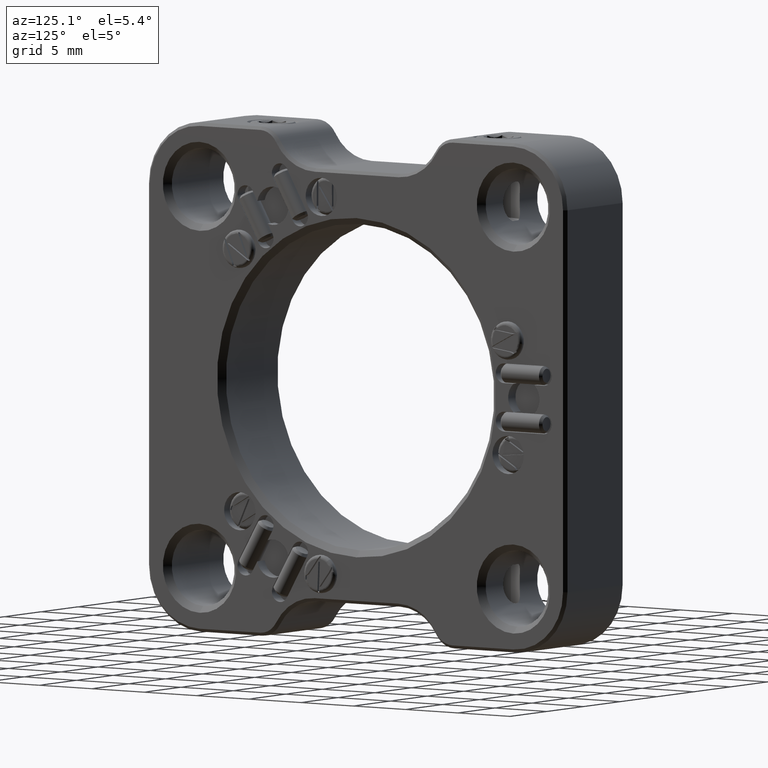
[diagram: clean part render]
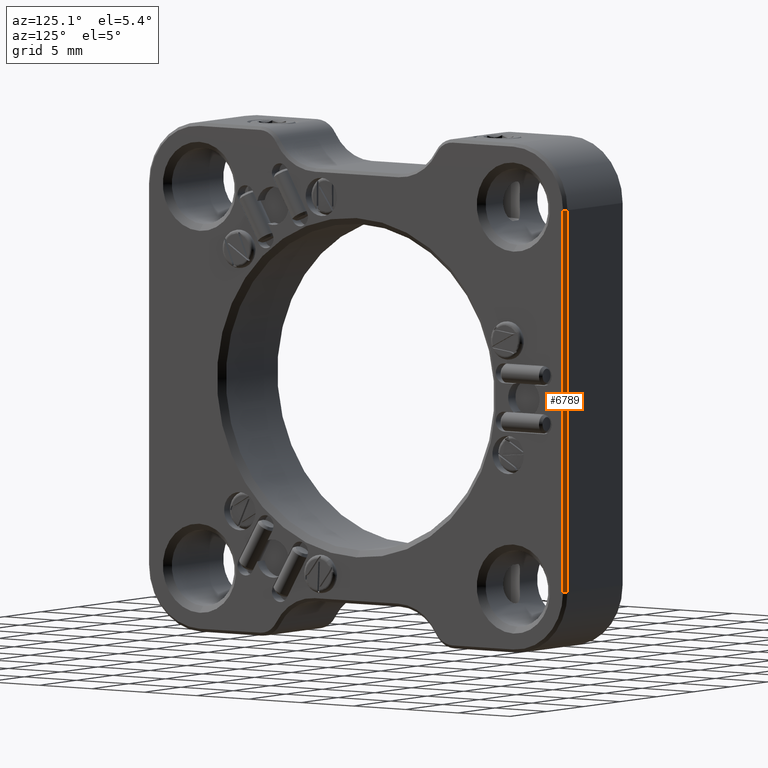
[diagram: same view with one face highlighted and labeled with its STEP entity id]
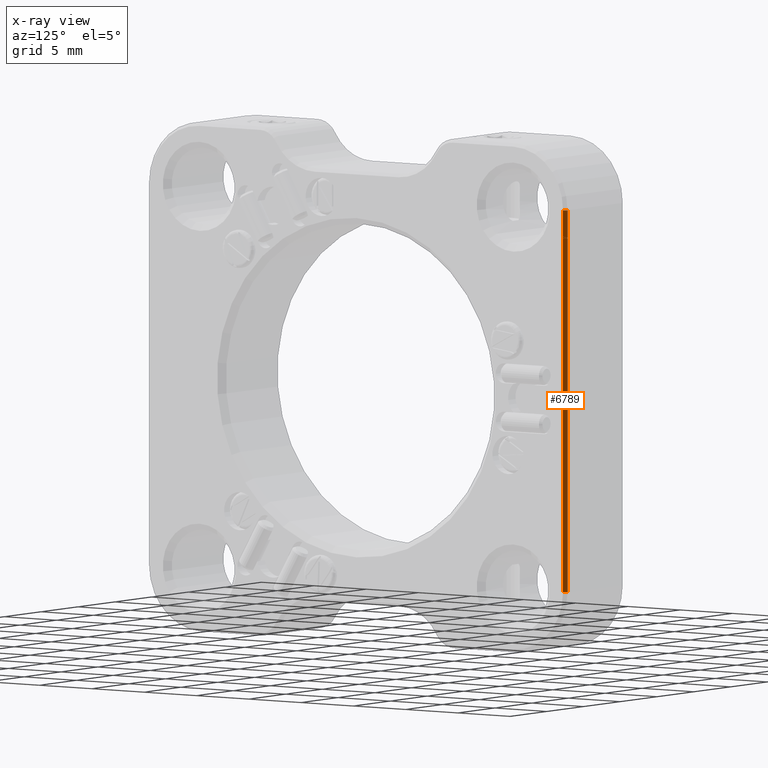
[diagram: x-ray of the same camera — body ghosted, the highlighted face saturated]
A machine part, auxiliary view. The second image highlights one B-rep face of the part: STEP entity #6789.
The next image is the same camera in x-ray: the body ghosted, the highlighted face saturated — about 0% of this face is hidden behind the body in this view.
In plain terms, the highlighted planar face has unit normal (0.7071, 0.7071, 0).
Its self-contained STEP definition (entity closure, byte-faithful):
#363 = LINE ( 'NONE', #12104, #9113 ) ;
#386 = DIRECTION ( 'NONE',  ( 0.000000000000000000, 0.000000000000000000, -1.000000000000000000 ) ) ;
#684 = ORIENTED_EDGE ( 'NONE', *, *, #2366, .F. ) ;
#823 = EDGE_LOOP ( 'NONE', ( #6215, #684, #12213, #9960 ) ) ;
#1065 = LINE ( 'NONE', #16249, #6128 ) ;
#1158 = EDGE_CURVE ( 'NONE', #15448, #17216, #3550, .T. ) ;
#1590 = EDGE_CURVE ( 'NONE', #10277, #15448, #363, .T. ) ;
#1614 = CARTESIAN_POINT ( 'NONE',  ( 3.750000000000000000, 19.99999999999999645, 14.99999999999999645 ) ) ;
#1840 = DIRECTION ( 'NONE',  ( 0.7071067811865475727, 0.7071067811865475727, 0.000000000000000000 ) ) ;
#2366 = EDGE_CURVE ( 'NONE', #17216, #12428, #8090, .T. ) ;
#2782 = DIRECTION ( 'NONE',  ( 0.000000000000000000, 0.000000000000000000, 1.000000000000000000 ) ) ;
#3470 = CARTESIAN_POINT ( 'NONE',  ( 4.000000000000000000, 19.74999999999999645, 0.000000000000000000 ) ) ;
#3550 = LINE ( 'NONE', #14357, #9410 ) ;
#3640 = CARTESIAN_POINT ( 'NONE',  ( 3.750000000000000000, 19.99999999999999645, -15.00000000000000711 ) ) ;
#4969 = DIRECTION ( 'NONE',  ( -0.7071067811865474617, 0.7071067811865474617, 0.000000000000000000 ) ) ;
#5826 = DIRECTION ( 'NONE',  ( 0.000000000000000000, 0.000000000000000000, -1.000000000000000000 ) ) ;
#6128 = VECTOR ( 'NONE', #11208, 1000.000000000000114 ) ;
#6215 = ORIENTED_EDGE ( 'NONE', *, *, #16985, .F. ) ;
#6789 = ADVANCED_FACE ( 'NONE', ( #13944 ), #14157, .T. ) ;
#8090 = LINE ( 'NONE', #18067, #14166 ) ;
#9113 = VECTOR ( 'NONE', #2782, 1000.000000000000000 ) ;
#9410 = VECTOR ( 'NONE', #4969, 1000.000000000000114 ) ;
#9960 = ORIENTED_EDGE ( 'NONE', *, *, #1590, .F. ) ;
#10277 = VERTEX_POINT ( 'NONE', #12449 ) ;
#11135 = AXIS2_PLACEMENT_3D ( 'NONE', #3470, #1840, #386 ) ;
#11208 = DIRECTION ( 'NONE',  ( 0.7071067811865474617, -0.7071067811865474617, 0.000000000000000000 ) ) ;
#12104 = CARTESIAN_POINT ( 'NONE',  ( 4.000000000000000000, 19.74999999999999645, 14.99999999999999645 ) ) ;
#12213 = ORIENTED_EDGE ( 'NONE', *, *, #1158, .F. ) ;
#12428 = VERTEX_POINT ( 'NONE', #3640 ) ;
#12449 = CARTESIAN_POINT ( 'NONE',  ( 4.000000000000000000, 19.74999999999999645, -15.00000000000000711 ) ) ;
#12863 = CARTESIAN_POINT ( 'NONE',  ( 4.000000000000000000, 19.74999999999999645, 14.99999999999999645 ) ) ;
#13944 = FACE_OUTER_BOUND ( 'NONE', #823, .T. ) ;
#14157 = PLANE ( 'NONE',  #11135 ) ;
#14166 = VECTOR ( 'NONE', #5826, 1000.000000000000000 ) ;
#14357 = CARTESIAN_POINT ( 'NONE',  ( 4.000000000000000000, 19.74999999999999645, 14.99999999999999645 ) ) ;
#15448 = VERTEX_POINT ( 'NONE', #12863 ) ;
#16249 = CARTESIAN_POINT ( 'NONE',  ( 3.750000000000000000, 19.99999999999999645, -15.00000000000000711 ) ) ;
#16985 = EDGE_CURVE ( 'NONE', #12428, #10277, #1065, .T. ) ;
#17216 = VERTEX_POINT ( 'NONE', #1614 ) ;
#18067 = CARTESIAN_POINT ( 'NONE',  ( 3.750000000000000000, 19.99999999999999645, -15.00000000000000711 ) ) ;